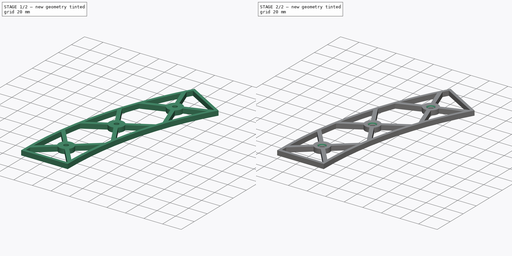
[diagram: build sequence overview — one tinted view per stage of 2, left to right]
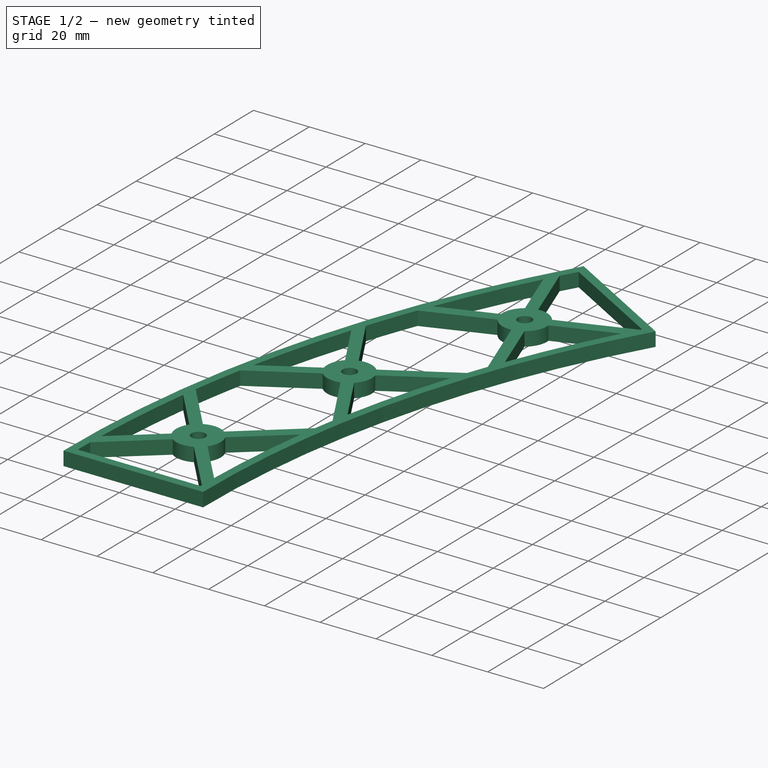
[diagram: stage 1 of 2 — iso view after this stage's code; geometry added in this stage tinted green]
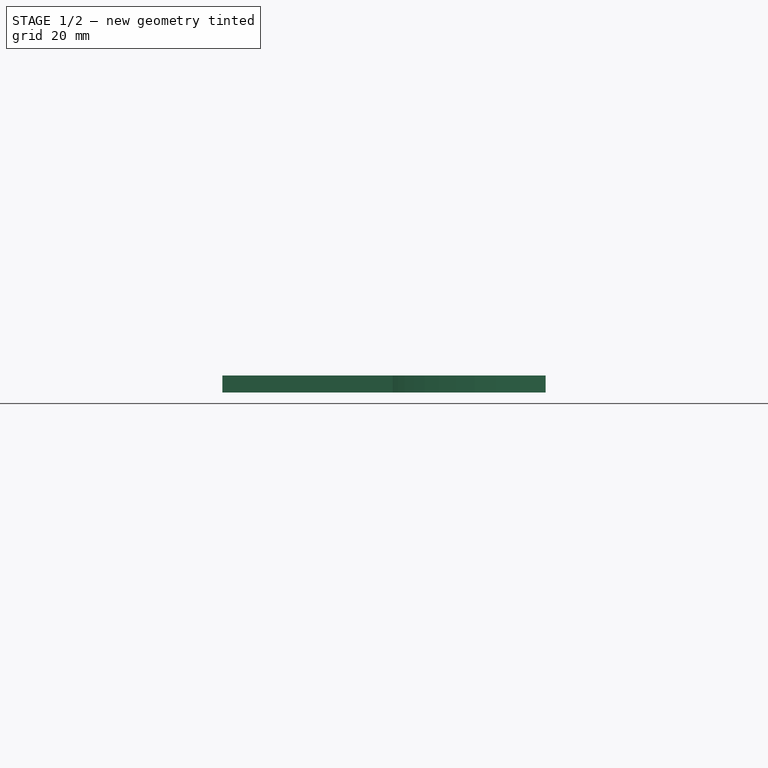
[diagram: stage 1 of 2 — front view after this stage's code; geometry added in this stage tinted green]
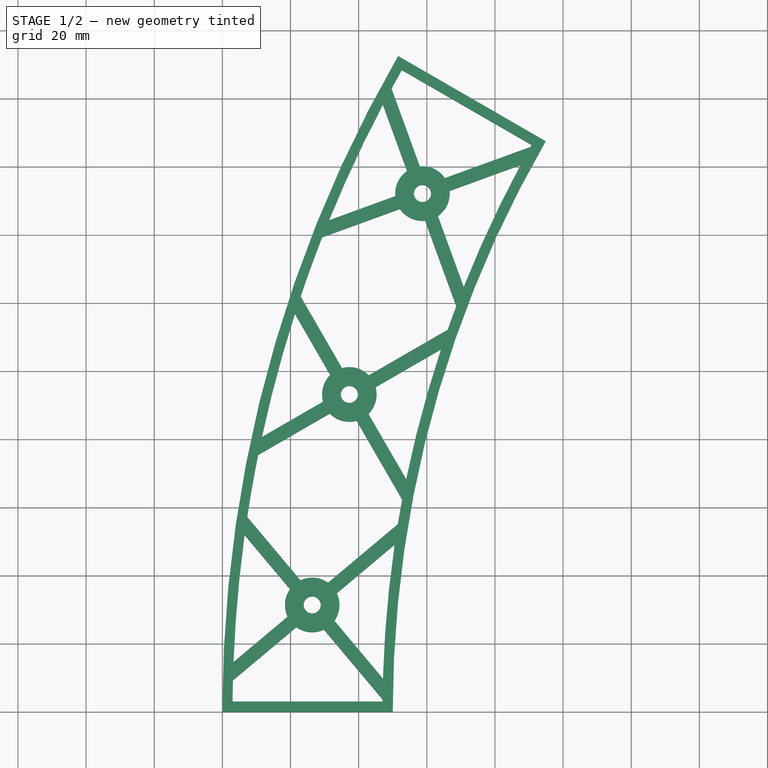
[diagram: stage 1 of 2 — top view after this stage's code; geometry added in this stage tinted green]
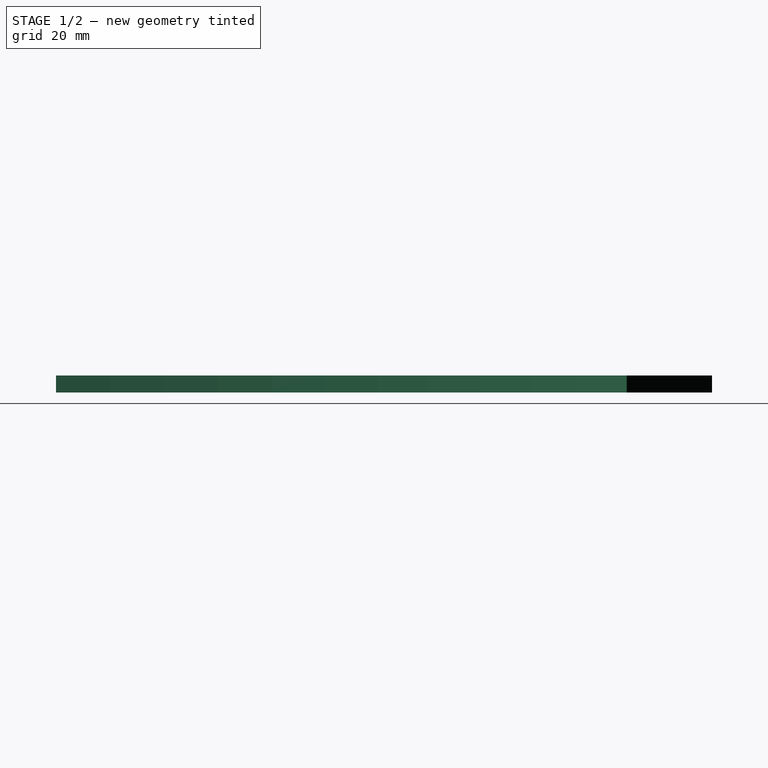
[diagram: stage 1 of 2 — right view after this stage's code; geometry added in this stage tinted green]
FCSTD DOCUMENT  (FreeCAD 0.19R20310 (Git))
Label: R1
License: All rights reserved
LicenseURL: http://en.wikipedia.org/wiki/All_rights_reserved
objects: Sketcher::SketchObject×1, PartDesign::Pad×1, PartDesign::Chamfer×1, PartDesign::Body×1
note: 6 computed .brp shape members not serialized (recipe doc carries the construction recipe); baked Part::Feature solids carry a one-line shape summary decoded from their .brp

FEATURE [Sketcher::SketchObject] Sketch
  MapMode = 5
  Support = -> [XY_Plane]
  sketch-geometry (70):
    g0: ArcOfCircle CenterX=385 CenterY=0 CenterZ=0 NormalX=0 NormalY=0 NormalZ=1 AngleXU=0 Radius=385 StartAngle=2.61799 EndAngle=3.14159
    g1: ArcOfCircle CenterX=385 CenterY=0 CenterZ=0 NormalX=0 NormalY=0 NormalZ=1 AngleXU=0 Radius=335 StartAngle=2.61799 EndAngle=3.14159
    g2: ArcOfCircle [constr] CenterX=385 CenterY=0 CenterZ=0 NormalX=0 NormalY=0 NormalZ=1 AngleXU=0 Radius=360 StartAngle=2.61799 EndAngle=3.14159
    g3: LineSegment StartX=50 StartY=4.1e-14 StartZ=0 EndX=0 EndY=4.71e-14 EndZ=0
    g4: LineSegment StartX=94.8815 StartY=167.5 StartZ=0 EndX=51.5802 EndY=192.5 EndZ=0
    g5: ArcOfCircle CenterX=385 CenterY=0 CenterZ=0 NormalX=0 NormalY=0 NormalZ=1 AngleXU=0 Radius=382.012 StartAngle=2.62585 EndAngle=2.64218
    g6: ArcOfCircle CenterX=385 CenterY=0 CenterZ=0 NormalX=0 NormalY=0 NormalZ=1 AngleXU=0 Radius=338.013 StartAngle=2.62687 EndAngle=2.62885
    g7: LineSegment StartX=47 StartY=3 StartZ=0 EndX=3 EndY=3 EndZ=0
    g8: LineSegment StartX=90.7834 StartY=166.402 StartZ=0 EndX=52.6783 EndY=188.402 EndZ=0
    g9: LineSegment [constr] StartX=52.6783 StartY=188.402 StartZ=0 EndX=54.1783 EndY=191 EndZ=0
    g10: Circle CenterX=26.3699 CenterY=31.3761 CenterZ=0 NormalX=0 NormalY=0 NormalZ=1 AngleXU=0 Radius=2.5
    g11: ArcOfCircle CenterX=26.3699 CenterY=31.3761 CenterZ=0 NormalX=0 NormalY=0 NormalZ=1 AngleXU=0 Radius=8 StartAngle=2.52161 EndAngle=3.58704
    g12: LineSegment [constr] StartX=7.57443 StartY=53.7756 StartZ=0 EndX=35.7215 EndY=20.2313 EndZ=0
    g13: LineSegment [constr] StartX=13.4292 StartY=20.5175 StartZ=0 EndX=52.9497 EndY=53.6792 EndZ=0
    g14: LineSegment StartX=22.923 StartY=38.5954 StartZ=0 EndX=7.29748 EndY=57.2172 EndZ=0
    g15: LineSegment StartX=19.8588 StartY=36.0242 StartZ=0 EndX=6.53122 EndY=51.9074 EndZ=0
    g16: LineSegment StartX=19.1506 StartY=27.9291 StartZ=0 EndX=3.26738 EndY=14.6016 EndZ=0
    g17: LineSegment StartX=21.7217 StartY=24.865 StartZ=0 EndX=3.09997 EndY=9.23946 EndZ=0
    g18: LineSegment StartX=29.8168 StartY=24.1567 StartZ=0 EndX=47.0066 EndY=3.67075 EndZ=0
    g19: LineSegment StartX=32.881 StartY=26.7279 StartZ=0 EndX=47.1273 EndY=9.74978 EndZ=0
    g20: LineSegment StartX=33.5892 StartY=34.823 StartZ=0 EndX=50.5673 EndY=49.0693 EndZ=0
    g21: LineSegment StartX=31.0181 StartY=37.8872 StartZ=0 EndX=51.5041 EndY=55.077 EndZ=0
    g22: ArcOfCircle CenterX=26.3699 CenterY=31.3761 CenterZ=0 NormalX=0 NormalY=0 NormalZ=1 AngleXU=0 Radius=8 StartAngle=4.0924 EndAngle=5.15784
    g23: ArcOfCircle CenterX=26.3699 CenterY=31.3761 CenterZ=0 NormalX=0 NormalY=0 NormalZ=1 AngleXU=0 Radius=8 StartAngle=5.6632 EndAngle=6.72864
    g24: ArcOfCircle CenterX=26.3699 CenterY=31.3761 CenterZ=0 NormalX=0 NormalY=0 NormalZ=1 AngleXU=0 Radius=8 StartAngle=0.950812 EndAngle=2.01625
    g25: Circle CenterX=58.7292 CenterY=152.143 CenterZ=0 NormalX=0 NormalY=0 NormalZ=1 AngleXU=0 Radius=2.5
    g26: ArcOfCircle CenterX=58.7292 CenterY=152.143 CenterZ=0 NormalX=0 NormalY=0 NormalZ=1 AngleXU=0 Radius=8 StartAngle=2.17254 EndAngle=3.23798
    g27: LineSegment [constr] StartX=53.9157 StartY=165.368 StartZ=0 EndX=69.4136 EndY=122.787 EndZ=0
    g28: LineSegment [constr] StartX=24.9787 StartY=139.858 StartZ=0 EndX=73.6097 EndY=157.559 EndZ=0
    g29: LineSegment StartX=57.9593 StartY=160.105 StartZ=0 EndX=49.6451 EndY=182.948 EndZ=0
    g30: LineSegment StartX=54.2005 StartY=158.737 StartZ=0 EndX=47.1091 EndY=178.221 EndZ=0
    g31: LineSegment StartX=50.7663 StartY=151.373 StartZ=0 EndX=31.2827 EndY=144.281 EndZ=0
    g32: LineSegment StartX=52.1344 StartY=147.614 StartZ=0 EndX=29.2914 EndY=139.3 EndZ=0
    g33: LineSegment StartX=59.4991 StartY=144.18 StartZ=0 EndX=68.6456 EndY=119.05 EndZ=0
    g34: LineSegment StartX=63.2579 StartY=145.548 StartZ=0 EndX=70.8382 EndY=124.721 EndZ=0
    g35: LineSegment StartX=66.6921 StartY=152.912 StartZ=0 EndX=87.5188 EndY=160.493 EndZ=0
    g36: LineSegment StartX=65.324 StartY=156.671 StartZ=0 EndX=90.4538 EndY=165.818 EndZ=0
    g37: ArcOfCircle CenterX=58.7292 CenterY=152.143 CenterZ=0 NormalX=0 NormalY=0 NormalZ=1 AngleXU=0 Radius=8 StartAngle=3.74334 EndAngle=4.80877
    g38: ArcOfCircle CenterX=58.7292 CenterY=152.143 CenterZ=0 NormalX=0 NormalY=0 NormalZ=1 AngleXU=0 Radius=8 StartAngle=5.31414 EndAngle=6.37957
    g39: ArcOfCircle CenterX=58.7292 CenterY=152.143 CenterZ=0 NormalX=0 NormalY=0 NormalZ=1 AngleXU=0 Radius=8 StartAngle=0.601746 EndAngle=1.66718
    g40: ArcOfCircle CenterX=385 CenterY=0 CenterZ=0 NormalX=0 NormalY=0 NormalZ=1 AngleXU=0 Radius=338.013 StartAngle=3.13073 EndAngle=3.13272
    g41: ArcOfCircle CenterX=385 CenterY=0 CenterZ=0 NormalX=0 NormalY=0 NormalZ=1 AngleXU=0 Radius=338.013 StartAngle=2.99591 EndAngle=3.11274
    g42: ArcOfCircle CenterX=385 CenterY=0 CenterZ=0 NormalX=0 NormalY=0 NormalZ=1 AngleXU=0 Radius=382.012 StartAngle=3.1174 EndAngle=3.13374
    g43: ArcOfCircle CenterX=385 CenterY=0 CenterZ=0 NormalX=0 NormalY=0 NormalZ=1 AngleXU=0 Radius=382.012 StartAngle=3.00529 EndAngle=3.10336
    g44: ArcOfCircle CenterX=385 CenterY=0 CenterZ=0 NormalX=0 NormalY=0 NormalZ=1 AngleXU=0 Radius=338.013 StartAngle=2.78167 EndAngle=2.80339
    g45: ArcOfCircle CenterX=385 CenterY=0 CenterZ=0 NormalX=0 NormalY=0 NormalZ=1 AngleXU=0 Radius=338.013 StartAngle=2.64684 EndAngle=2.76368
    g46: ArcOfCircle CenterX=385 CenterY=0 CenterZ=0 NormalX=0 NormalY=0 NormalZ=1 AngleXU=0 Radius=382.012 StartAngle=2.76834 EndAngle=2.81672
    g47: ArcOfCircle CenterX=385 CenterY=0 CenterZ=0 NormalX=0 NormalY=0 NormalZ=1 AngleXU=0 Radius=382.012 StartAngle=2.65623 EndAngle=2.75429
    g48: LineSegment [constr] StartX=26.3699 StartY=31.3761 StartZ=0 EndX=385 EndY=3.6e-15 EndZ=0
    g49: LineSegment [constr] StartX=385 StartY=0 StartZ=0 EndX=58.7292 EndY=152.143 EndZ=0
    g50: LineSegment StartX=42.8717 StartY=87.4667 StartZ=0 EndX=53.9534 EndY=68.2726 EndZ=0
    g51: LineSegment StartX=39.4076 StartY=85.4667 StartZ=0 EndX=52.7789 EndY=62.3069 EndZ=0
    g52: LineSegment [constr] StartX=23.8045 StartY=116.492 StartZ=0 EndX=47.8278 EndY=74.8825 EndZ=0
    g53: ArcOfCircle CenterX=37.2667 CenterY=93.1749 CenterZ=0 NormalX=0 NormalY=0 NormalZ=1 AngleXU=0 Radius=8 StartAngle=5.48867 EndAngle=6.5541
    g54: LineSegment [constr] StartX=37.2667 StartY=93.1749 StartZ=0 EndX=385 EndY=1.42e-14 EndZ=0
    g55: ArcOfCircle CenterX=37.2667 CenterY=93.1749 CenterZ=0 NormalX=0 NormalY=0 NormalZ=1 AngleXU=0 Radius=8 StartAngle=3.91787 EndAngle=4.98331
    g56: LineSegment StartX=31.5585 StartY=87.5698 StartZ=0 EndX=10.5063 EndY=75.4153 EndZ=0
    g57: LineSegment [constr] StartX=15.3986 StartY=80.5493 StartZ=0 EndX=64.654 EndY=108.987 EndZ=0
    g58: LineSegment StartX=29.5585 StartY=91.0339 StartZ=0 EndX=11.6023 EndY=80.6669 EndZ=0
    g59: ArcOfCircle CenterX=37.2667 CenterY=93.1749 CenterZ=0 NormalX=0 NormalY=0 NormalZ=1 AngleXU=0 Radius=8 StartAngle=2.34708 EndAngle=3.41251
    g60: LineSegment StartX=31.6617 StartY=98.8831 StartZ=0 EndX=21.2946 EndY=116.839 EndZ=0
    g61: LineSegment StartX=35.1258 StartY=100.883 StartZ=0 EndX=22.9713 EndY=121.935 EndZ=0
    g62: ArcOfCircle CenterX=37.2667 CenterY=93.1749 CenterZ=0 NormalX=0 NormalY=0 NormalZ=1 AngleXU=0 Radius=8 StartAngle=0.776279 EndAngle=1.84171
    g63: LineSegment StartX=42.9749 StartY=98.7799 StartZ=0 EndX=66.1346 EndY=112.151 EndZ=0
    g64: LineSegment StartX=44.9749 StartY=95.3158 StartZ=0 EndX=64.1689 EndY=106.397 EndZ=0
    g65: Circle CenterX=37.2667 CenterY=93.1749 CenterZ=0 NormalX=0 NormalY=0 NormalZ=1 AngleXU=0 Radius=2.5
    g66: ArcOfCircle CenterX=385 CenterY=0 CenterZ=0 NormalX=0 NormalY=0 NormalZ=1 AngleXU=0 Radius=382.012 StartAngle=2.94287 EndAngle=2.99125
    g67: ArcOfCircle CenterX=385 CenterY=0 CenterZ=0 NormalX=0 NormalY=0 NormalZ=1 AngleXU=0 Radius=338.013 StartAngle=2.9562 EndAngle=2.97792
    g68: ArcOfCircle CenterX=385 CenterY=0 CenterZ=0 NormalX=0 NormalY=0 NormalZ=1 AngleXU=0 Radius=382.012 StartAngle=2.83076 EndAngle=2.92883
    g69: ArcOfCircle CenterX=385 CenterY=0 CenterZ=0 NormalX=0 NormalY=0 NormalZ=1 AngleXU=0 Radius=338.013 StartAngle=2.82138 EndAngle=2.93821
  constraints (220):
    c: PointOnObject(g0,g-1)
    c: Coincident(g0,g-1)
    c: PointOnObject(g1,g-1)
    c: Coincident(g2,g0)
    c: PointOnObject(g2,g-1)
    c: Coincident(g0,g1)
    c: Radius(g2) = 360
    c: DistanceX(g0,g2) = 25
    c: DistanceX(g2,g1) = 25
    c: Coincident(g3,g1)
    c: Coincident(g3,g0)
    c: Coincident(g4,g1)
    c: Coincident(g4,g0)
    c: PointOnObject(g2,g4)
    c: Perpendicular(g2,g4)
    c: Angle(g4,g3) = 0.523599
    c: Coincident(g5,g6)
    c: Coincident(g7,g40)
    c: Coincident(g7,g42)
    c: Coincident(g8,g6)
    c: Coincident(g8,g5)
    c: Coincident(g0,g5)
    c: Horizontal(g7)
    c: Parallel(g8,g4)
    c: DistanceY(g1,g40) = 3
    c: DistanceX(g0,g42) = 3
    c: DistanceX(g40,g1) = 3
    c: PointOnObject(g9,g4)
    c: Perpendicular(g4,g9)
    c: Distance(g9) = 3
    c: Coincident(g5,g9)
    c: Radius(g10) = 2.5
    c: Coincident(g11,g10)
    c: Radius(g11) = 8
    c: PointOnObject(g10,g13)
    c: PointOnObject(g10,g12)
    c: Parallel(g15,g12)
    c: Parallel(g12,g14)
    c: Coincident(g11,g15)
    c: PointOnObject(g17,g11)
    c: PointOnObject(g19,g11)
    c: PointOnObject(g18,g11)
    c: PointOnObject(g20,g11)
    c: PointOnObject(g21,g11)
    c: Parallel(g17,g13)
    c: Parallel(g16,g13)
    c: Parallel(g12,g18)
    c: Parallel(g12,g19)
    c: Parallel(g13,g20)
    c: Parallel(g13,g21)
    c: Equal(g11,g22)
    c: Coincident(g11,g16)
    c: Coincident(g11,g22)
    c: PointOnObject(g22,g17)
    c: Equal(g22,g23)
    c: PointOnObject(g22,g18)
    c: Coincident(g22,g23)
    c: PointOnObject(g23,g19)
    c: Equal(g23,g24)
    c: PointOnObject(g23,g20)
    c: Coincident(g23,g24)
    c: PointOnObject(g24,g21)
    c: Distance(g11,g12) = 2
    c: Distance(g18,g12) = 2
    c: Distance(g20,g13) = 2
    c: Distance(g17,g13) = 2
    c: Distance(g11,g13) = 2
    c: Coincident(g14,g24)
    c: Radius(g25) = 2.5
    c: Coincident(g26,g25)
    c: Radius(g26) = 8
    c: PointOnObject(g25,g28)
    c: PointOnObject(g25,g27)
    c: Parallel(g30,g27)
    c: Parallel(g27,g29)
    c: Coincident(g26,g30)
    c: PointOnObject(g32,g26)
    c: PointOnObject(g34,g26)
    c: PointOnObject(g33,g26)
    c: PointOnObject(g35,g26)
    c: PointOnObject(g36,g26)
    c: Parallel(g32,g28)
    c: Parallel(g31,g28)
    c: Parallel(g27,g33)
    c: Parallel(g27,g34)
    c: Parallel(g28,g35)
    c: Parallel(g28,g36)
    c: Equal(g26,g37)
    c: Coincident(g26,g31)
    c: Coincident(g26,g37)
    c: PointOnObject(g37,g32)
    c: Equal(g37,g38)
    c: PointOnObject(g37,g33)
    c: Coincident(g37,g38)
    c: PointOnObject(g38,g34)
    c: Equal(g38,g39)
    c: PointOnObject(g38,g35)
    c: Coincident(g38,g39)
    c: PointOnObject(g39,g36)
    c: Distance(g26,g27) = 2
    c: Distance(g33,g27) = 2
    c: Distance(g35,g28) = 2
    c: Distance(g32,g28) = 2
    c: Distance(g26,g28) = 2
    c: Coincident(g29,g39)
    c: PointOnObject(g25,g2)
    c: PointOnObject(g33,g6)
    c: PointOnObject(g24,g2)
    c: Equal(g6,g40)
    c: Coincident(g41,g19)
    c: Coincident(g40,g18)
    c: Coincident(g6,g40)
    c: Equal(g6,g41)
    c: Coincident(g67,g21)
    c: Coincident(g41,g20)
    c: Coincident(g6,g41)
    c: Equal(g5,g42)
    c: Coincident(g43,g16)
    c: Coincident(g42,g17)
    c: Coincident(g5,g42)
    c: Equal(g5,g43)
    c: Coincident(g66,g14)
    c: Coincident(g43,g15)
    c: Coincident(g5,g43)
    c: Equal(g6,g44)
    c: Coincident(g45,g34)
    c: Coincident(g6,g44)
    c: PointOnObject(g44,g33)
    c: Equal(g6,g45)
    c: Coincident(g6,g36)
    c: Coincident(g45,g35)
    c: Coincident(g6,g45)
    c: Equal(g5,g46)
    c: Coincident(g47,g31)
    c: Coincident(g46,g32)
    c: Coincident(g5,g46)
    c: Equal(g5,g47)
    c: Coincident(g5,g29)
    c: Coincident(g47,g30)
    c: Coincident(g5,g47)
    c: Distance(g36,g28) = 2
    c: Distance(g29,g27) = 2
    c: Distance(g19,g12) = 2
    c: Distance(g21,g13) = 2
    c: Distance(g14,g12) = 2
    c: Coincident(g48,g0)
    c: Coincident(g49,g0)
    c: Coincident(g49,g25)
    c: Angle(g48,g-1) = 0.0872665
    c: Coincident(g48,g10)
    c: Angle(g4,g49) = 0.0872665
    c: Distance(g34,g27) = 2
    c: Radius(g65) = 2.5
    c: Coincident(g59,g65)
    c: Radius(g59) = 8
    c: PointOnObject(g65,g57)
    c: PointOnObject(g65,g52)
    c: Parallel(g60,g52)
    c: Parallel(g52,g61)
    c: Coincident(g59,g60)
    c: PointOnObject(g56,g59)
    c: PointOnObject(g50,g59)
    c: PointOnObject(g51,g59)
    c: PointOnObject(g64,g59)
    c: PointOnObject(g63,g59)
    c: Parallel(g56,g57)
    c: Parallel(g58,g57)
    c: Parallel(g52,g51)
    c: Parallel(g52,g50)
    c: Parallel(g57,g64)
    c: Parallel(g57,g63)
    c: Equal(g59,g55)
    c: Coincident(g59,g58)
    c: Coincident(g59,g55)
    c: PointOnObject(g55,g56)
    c: Equal(g55,g53)
    c: PointOnObject(g55,g51)
    c: Coincident(g55,g53)
    c: PointOnObject(g53,g50)
    c: Equal(g53,g62)
    c: PointOnObject(g53,g64)
    c: Coincident(g53,g62)
    c: PointOnObject(g62,g63)
    c: Distance(g59,g52) = 2
    c: Distance(g51,g52) = 2
    c: Distance(g64,g57) = 2
    c: Distance(g56,g57) = 2
    c: Distance(g59,g57) = 2
    c: Coincident(g61,g62)
    c: Distance(g50,g52) = 2
    c: Distance(g63,g57) = 2
    c: Distance(g61,g52) = 2
    c: Coincident(g54,g65)
    c: PointOnObject(g53,g2)
    c: PointOnObject(g64,g44)
    c: PointOnObject(g60,g46)
    c: Equal(g46,g66)
    c: Coincident(g68,g58)
    c: Coincident(g66,g56)
    c: Coincident(g46,g66)
    c: Equal(g44,g67)
    c: Coincident(g69,g50)
    c: Coincident(g67,g51)
    c: Coincident(g44,g67)
    c: Equal(g46,g68)
    c: Coincident(g46,g61)
    c: Coincident(g46,g68)
    c: Equal(g44,g69)
    c: Coincident(g44,g63)
    c: Coincident(g44,g69)
    c: PointOnObject(g68,g60)
    c: PointOnObject(g69,g64)
    c: Coincident(g54,g0)
    c: Angle(g54,g-1) = 0.261799
    c: Perpendicular(g27,g28)
    c: Perpendicular(g52,g57)
    c: Perpendicular(g12,g13)
    c: Angle(g48,g13) = 0.785398
    c: Angle(g54,g57) = 0.785398
    c: Angle(g28,g49) = 2.35619
FEATURE [PartDesign::Pad] Pad
  Length = 5
  Length2 = 100
  Profile = -> Sketch
  Type = 0
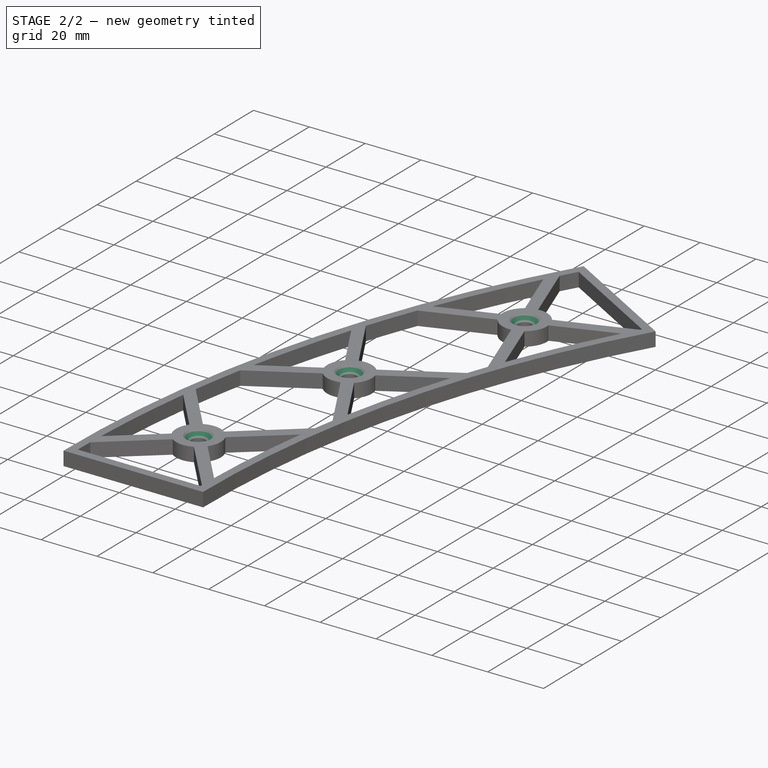
[diagram: stage 2 of 2 — iso view after this stage's code; geometry added in this stage tinted green]
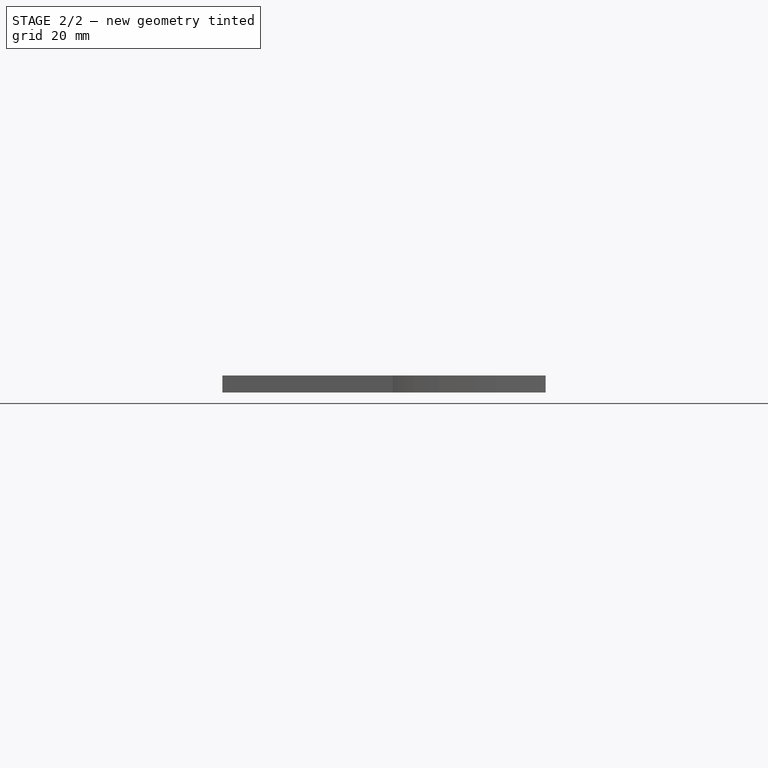
[diagram: stage 2 of 2 — front view after this stage's code; geometry added in this stage tinted green]
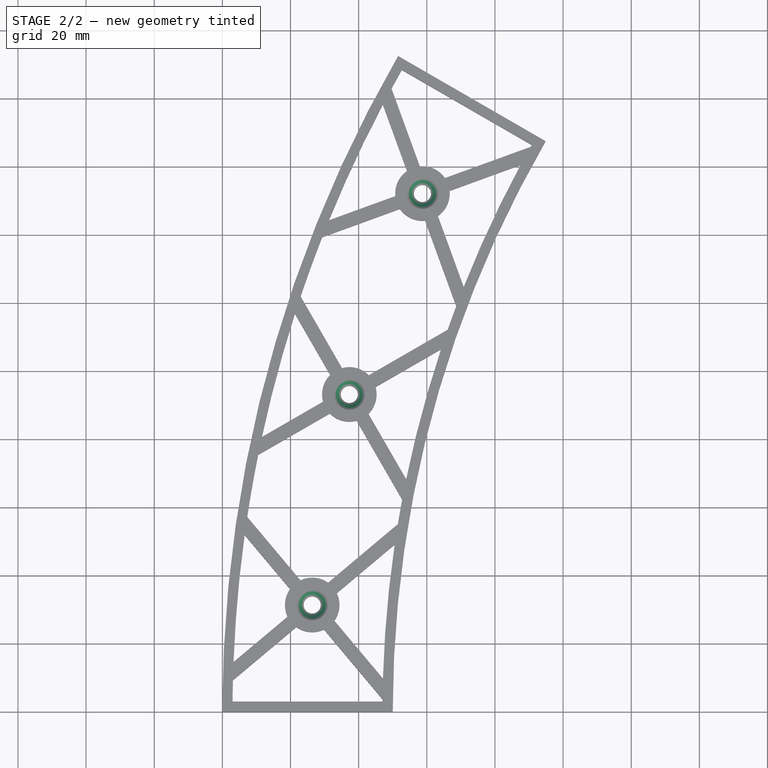
[diagram: stage 2 of 2 — top view after this stage's code; geometry added in this stage tinted green]
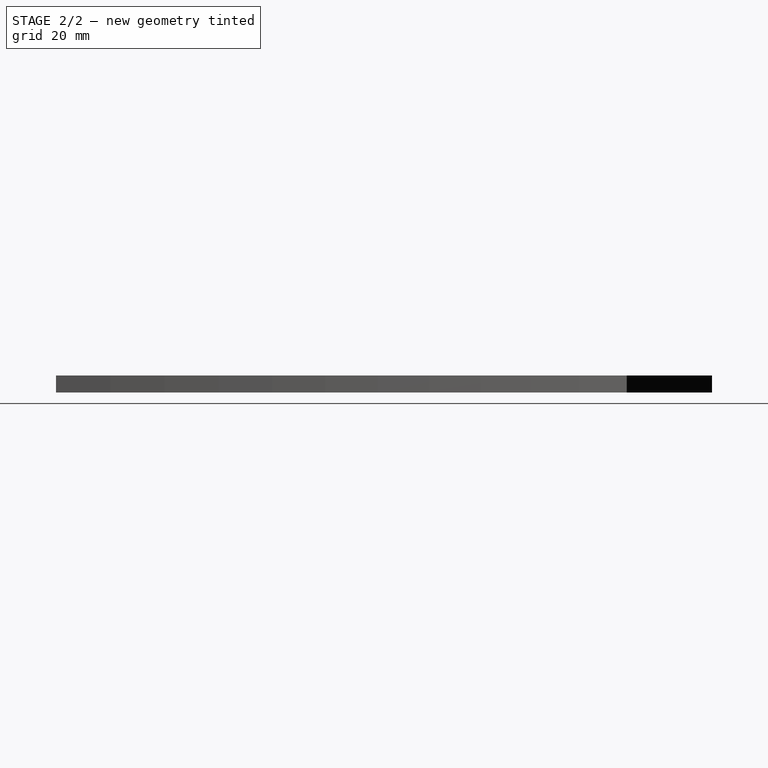
[diagram: stage 2 of 2 — right view after this stage's code; geometry added in this stage tinted green]
FEATURE [PartDesign::Chamfer] Chamfer
  Base = -> Pad [Edge171,Edge174,Edge177]
  BaseFeature = -> Pad
  Size = 2
  SupportTransform = true
FEATURE [PartDesign::Body] Body
  Group = -> [Sketch,Pad,Chamfer]
  Origin = -> Origin
  Tip = -> Chamfer
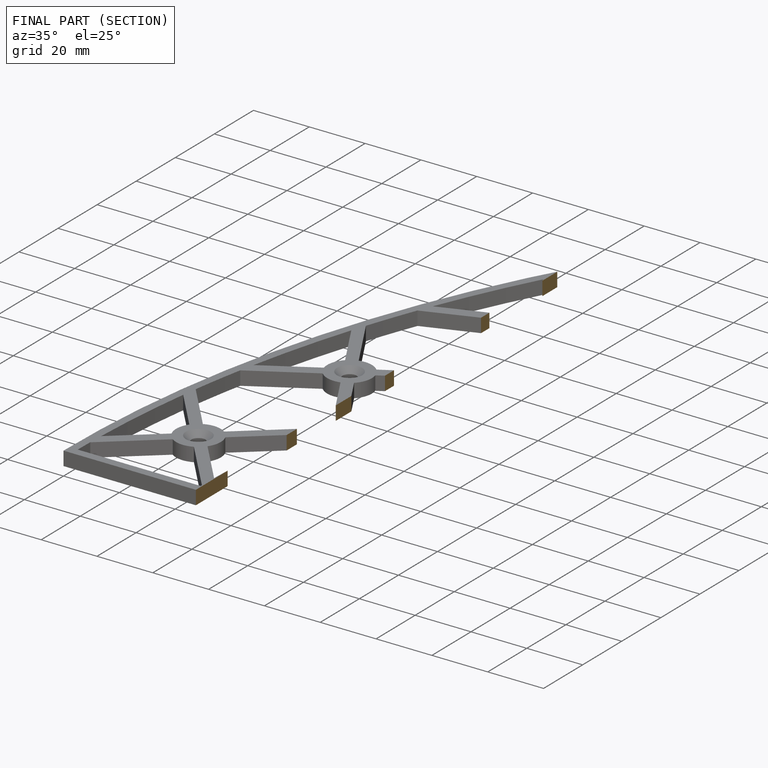
[diagram: finished part — half-section view (interior)]
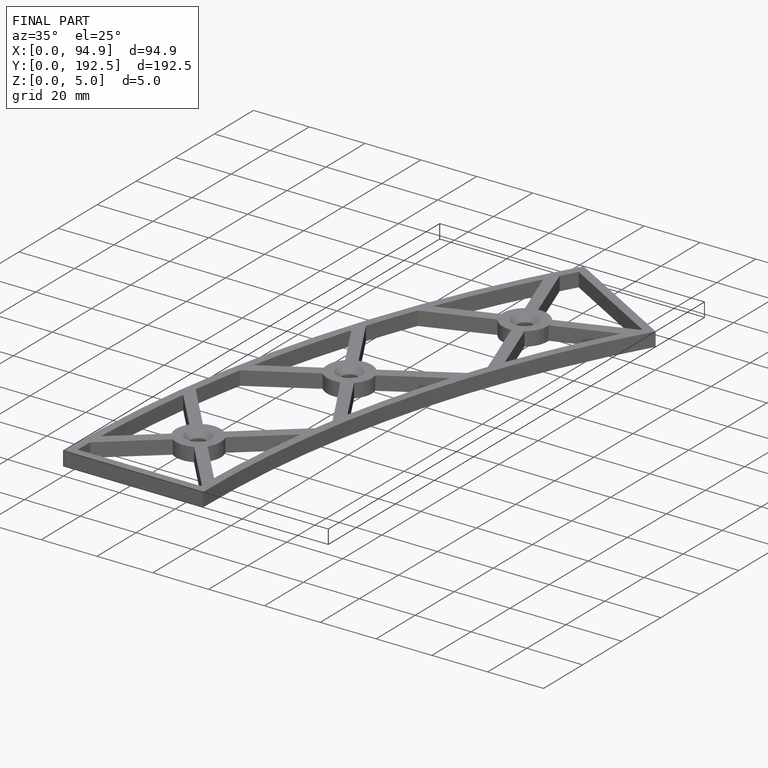
[diagram: finished part — iso view with bounding-box wireframe]
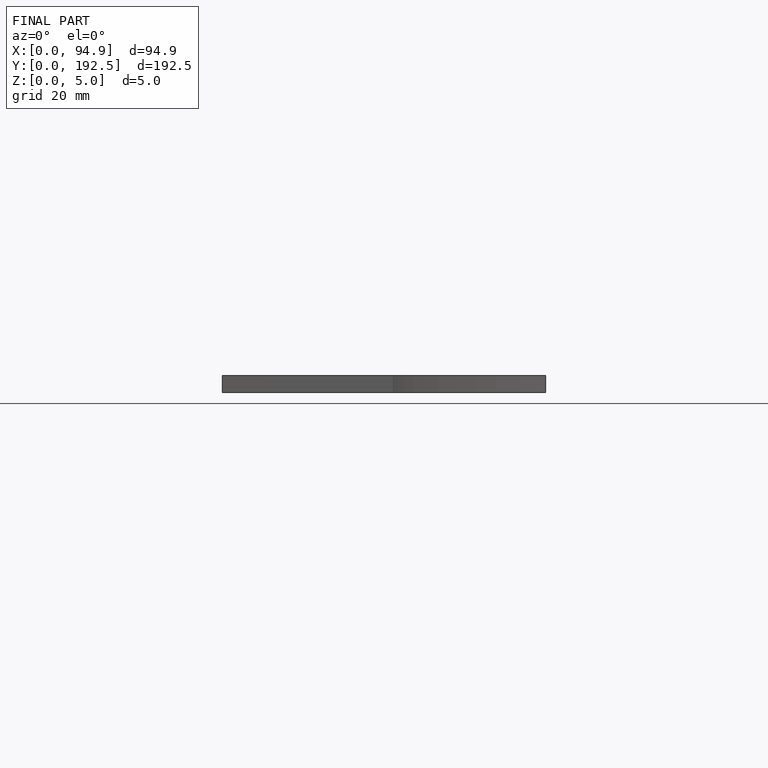
[diagram: finished part — front view with bounding-box wireframe]
